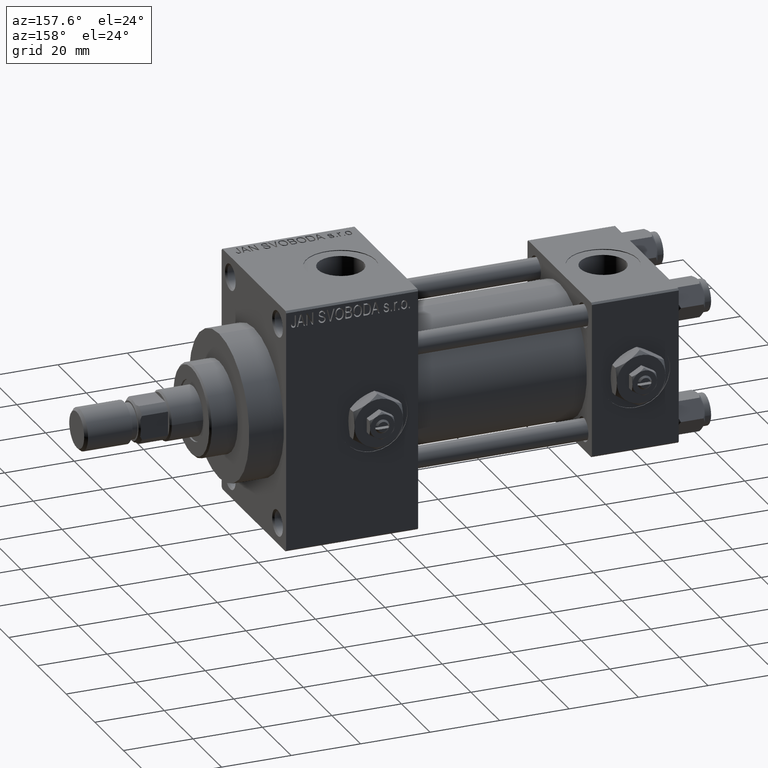
[diagram: clean part render]
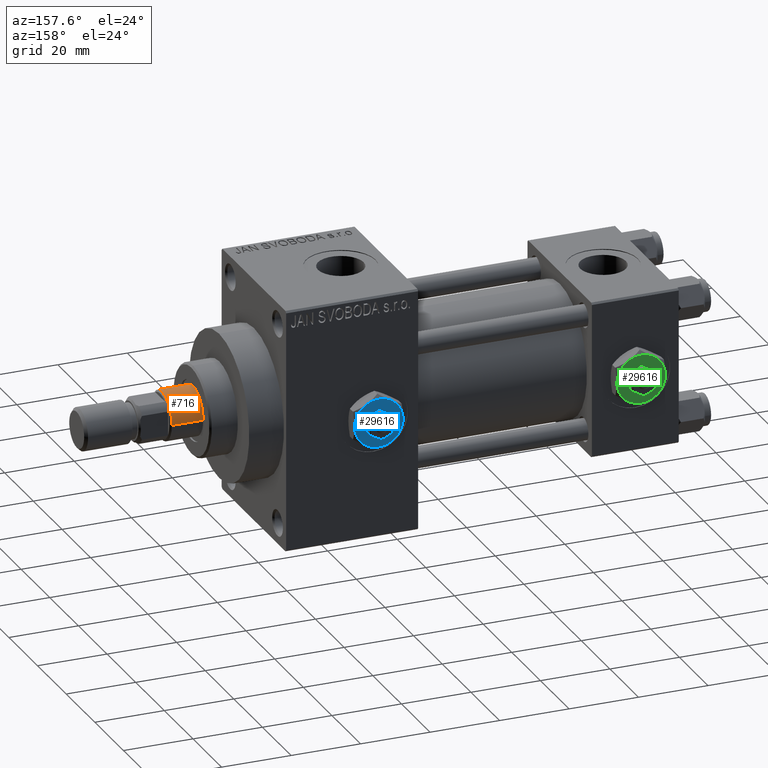
[diagram: same view with three faces highlighted in distinct colors, each labeled with its STEP entity id]
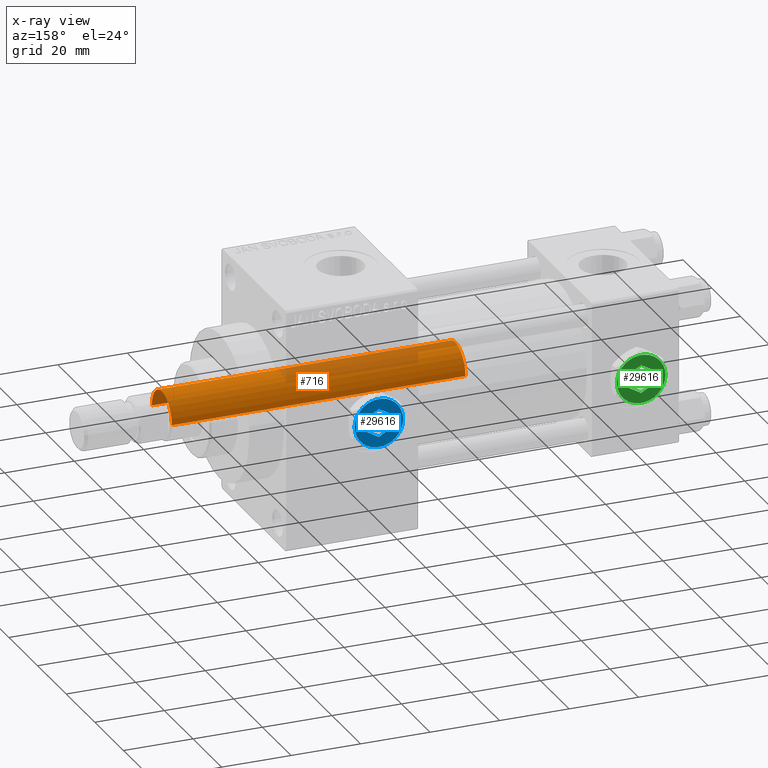
[diagram: x-ray of the same camera — body ghosted, the three highlighted faces saturated]
A machine part, auxiliary view with three faces highlighted in distinct colors.
The next image is the same camera in x-ray (body ghosted, the three faces saturated) — at least one of them is partly hidden behind the body in this view.
Their STEP definitions:

[orange] entity #716 — the highlighted cylindrical surface (edge-blend (fillet) strip) has radius 7 mm, axis along (-1, 0, 0).
#716 = ADVANCED_FACE ( 'NONE', ( #18123 ), #47436, .T. ) ;
#1975 = VECTOR ( 'NONE', #47404, 1000.000000000000000 ) ;
#3943 = EDGE_CURVE ( 'NONE', #38057, #41633, #25065, .T. ) ;
#5299 = LINE ( 'NONE', #35873, #1975 ) ;
#5441 = ORIENTED_EDGE ( 'NONE', *, *, #19315, .F. ) ;
#5735 = AXIS2_PLACEMENT_3D ( 'NONE', #40660, #40407, #5813 ) ;
#5813 = DIRECTION ( 'NONE',  ( -1.000000000000000000, 0.000000000000000000, 0.000000000000000000 ) ) ;
#7011 = CIRCLE ( 'NONE', #22229, 7.000000000000000000 ) ;
#10816 = EDGE_CURVE ( 'NONE', #41633, #11031, #5299, .T. ) ;
#11031 = VERTEX_POINT ( 'NONE', #24962 ) ;
#11114 = DIRECTION ( 'NONE',  ( 0.000000000000000000, 0.000000000000000000, -1.000000000000000000 ) ) ;
#13375 = CARTESIAN_POINT ( 'NONE',  ( 0.000000000000000000, 0.000000000000000000, 30.00000000000000000 ) ) ;
#13503 = ORIENTED_EDGE ( 'NONE', *, *, #3943, .T. ) ;
#14881 = LINE ( 'NONE', #18162, #38381 ) ;
#17898 = AXIS2_PLACEMENT_3D ( 'NONE', #18656, #11114, #45931 ) ;
#18123 = FACE_OUTER_BOUND ( 'NONE', #46974, .T. ) ;
#18162 = CARTESIAN_POINT ( 'NONE',  ( 7.000000000000000000, 8.572527594031473190E-16, 115.0000000000000000 ) ) ;
#18656 = CARTESIAN_POINT ( 'NONE',  ( 0.000000000000000000, 0.000000000000000000, 114.4999999999999858 ) ) ;
#19315 = EDGE_CURVE ( 'NONE', #38057, #27586, #14881, .T. ) ;
#21331 = CARTESIAN_POINT ( 'NONE',  ( 7.000000000000000000, 8.572527594031473190E-16, 30.00000000000000000 ) ) ;
#22229 = AXIS2_PLACEMENT_3D ( 'NONE', #13375, #40164, #44172 ) ;
#24962 = CARTESIAN_POINT ( 'NONE',  ( -7.000000000000000000, 0.000000000000000000, 30.00000000000000000 ) ) ;
#25065 = CIRCLE ( 'NONE', #17898, 7.000000000000000000 ) ;
#27586 = VERTEX_POINT ( 'NONE', #21331 ) ;
#27890 = CARTESIAN_POINT ( 'NONE',  ( 7.000000000000000000, 8.572527594031473190E-16, 114.4999999999999858 ) ) ;
#28862 = ORIENTED_EDGE ( 'NONE', *, *, #40035, .T. ) ;
#35873 = CARTESIAN_POINT ( 'NONE',  ( -7.000000000000000000, 0.000000000000000000, 115.0000000000000000 ) ) ;
#36933 = DIRECTION ( 'NONE',  ( -0.000000000000000000, -0.000000000000000000, -1.000000000000000000 ) ) ;
#38057 = VERTEX_POINT ( 'NONE', #27890 ) ;
#38381 = VECTOR ( 'NONE', #36933, 1000.000000000000000 ) ;
#40035 = EDGE_CURVE ( 'NONE', #11031, #27586, #7011, .T. ) ;
#40164 = DIRECTION ( 'NONE',  ( 0.000000000000000000, 0.000000000000000000, 1.000000000000000000 ) ) ;
#40407 = DIRECTION ( 'NONE',  ( -0.000000000000000000, -0.000000000000000000, -1.000000000000000000 ) ) ;
#40660 = CARTESIAN_POINT ( 'NONE',  ( 0.000000000000000000, 0.000000000000000000, 115.0000000000000000 ) ) ;
#40769 = ORIENTED_EDGE ( 'NONE', *, *, #10816, .T. ) ;
#41633 = VERTEX_POINT ( 'NONE', #49063 ) ;
#44172 = DIRECTION ( 'NONE',  ( 1.000000000000000000, 0.000000000000000000, 0.000000000000000000 ) ) ;
#45931 = DIRECTION ( 'NONE',  ( 1.000000000000000000, 0.000000000000000000, 0.000000000000000000 ) ) ;
#46974 = EDGE_LOOP ( 'NONE', ( #5441, #13503, #40769, #28862 ) ) ;
#47404 = DIRECTION ( 'NONE',  ( -0.000000000000000000, -0.000000000000000000, -1.000000000000000000 ) ) ;
#47436 = CYLINDRICAL_SURFACE ( 'NONE', #5735, 7.000000000000000000 ) ;
#49063 = CARTESIAN_POINT ( 'NONE',  ( -7.000000000000000000, 0.000000000000000000, 114.4999999999999858 ) ) ;

[blue] entity #29616 — the highlighted planar face has unit normal (0, 1, 0).
#1544 = DIRECTION ( 'NONE',  ( -3.219245568722483357E-16, 1.000000000000000000, 0.000000000000000000 ) ) ;
#1622 = EDGE_CURVE ( 'NONE', #43480, #4945, #37019, .T. ) ;
#2225 = CARTESIAN_POINT ( 'NONE',  ( -3.499999999999998668, -2.020725942163689837, 4.299999999999999822 ) ) ;
#2393 = VERTEX_POINT ( 'NONE', #41048 ) ;
#2497 = AXIS2_PLACEMENT_3D ( 'NONE', #41808, #7474, #3711 ) ;
#2732 = ORIENTED_EDGE ( 'NONE', *, *, #44584, .F. ) ;
#2875 = VERTEX_POINT ( 'NONE', #8058 ) ;
#2968 = VECTOR ( 'NONE', #3923, 1000.000000000000114 ) ;
#3405 = ORIENTED_EDGE ( 'NONE', *, *, #38580, .F. ) ;
#3677 = DIRECTION ( 'NONE',  ( 1.000000000000000000, 0.000000000000000000, 0.000000000000000000 ) ) ;
#3711 = DIRECTION ( 'NONE',  ( 1.000000000000000000, 0.000000000000000000, 0.000000000000000000 ) ) ;
#3923 = DIRECTION ( 'NONE',  ( -0.8660254037844387076, 0.4999999999999998335, 0.000000000000000000 ) ) ;
#4050 = EDGE_CURVE ( 'NONE', #2875, #27760, #42916, .T. ) ;
#4553 = CIRCLE ( 'NONE', #38967, 7.000000000000001776 ) ;
#4623 = ORIENTED_EDGE ( 'NONE', *, *, #16086, .T. ) ;
#4945 = VERTEX_POINT ( 'NONE', #39958 ) ;
#5557 = ORIENTED_EDGE ( 'NONE', *, *, #4050, .F. ) ;
#5629 = CIRCLE ( 'NONE', #15275, 7.000000000000001776 ) ;
#6574 = DIRECTION ( 'NONE',  ( -0.8660254037844385966, -0.4999999999999998890, 0.000000000000000000 ) ) ;
#6615 = AXIS2_PLACEMENT_3D ( 'NONE', #7528, #29861, #25834 ) ;
#7282 = FACE_BOUND ( 'NONE', #10330, .T. ) ;
#7474 = DIRECTION ( 'NONE',  ( 0.000000000000000000, 0.000000000000000000, 1.000000000000000000 ) ) ;
#7528 = CARTESIAN_POINT ( 'NONE',  ( 0.000000000000000000, 0.000000000000000000, 4.299999999999999822 ) ) ;
#8058 = CARTESIAN_POINT ( 'NONE',  ( 3.500000000000000000, -2.020725942163690281, 4.299999999999999822 ) ) ;
#8521 = ORIENTED_EDGE ( 'NONE', *, *, #1622, .T. ) ;
#8640 = DIRECTION ( 'NONE',  ( 0.000000000000000000, 0.000000000000000000, 1.000000000000000000 ) ) ;
#9154 = DIRECTION ( 'NONE',  ( 1.073081856240828196E-16, -1.000000000000000000, 0.000000000000000000 ) ) ;
#10330 = EDGE_LOOP ( 'NONE', ( #2732, #30223, #5557, #35259, #45930, #3405 ) ) ;
#10431 = DIRECTION ( 'NONE',  ( 0.000000000000000000, 0.000000000000000000, 1.000000000000000000 ) ) ;
#10694 = VECTOR ( 'NONE', #1544, 1000.000000000000000 ) ;
#10874 = AXIS2_PLACEMENT_3D ( 'NONE', #43472, #8640, #31462 ) ;
#11413 = CARTESIAN_POINT ( 'NONE',  ( 0.000000000000000000, 0.000000000000000000, 4.299999999999999822 ) ) ;
#11439 = DIRECTION ( 'NONE',  ( 0.000000000000000000, 0.000000000000000000, 1.000000000000000000 ) ) ;
#11903 = ORIENTED_EDGE ( 'NONE', *, *, #37173, .T. ) ;
#12481 = CARTESIAN_POINT ( 'NONE',  ( -2.443687887572056883E-16, -4.041451884327378785, 4.299999999999999822 ) ) ;
#13562 = CARTESIAN_POINT ( 'NONE',  ( 3.500000000000000444, 6.062177826491073063, 4.299999999999999822 ) ) ;
#13952 = VERTEX_POINT ( 'NONE', #18849 ) ;
#15275 = AXIS2_PLACEMENT_3D ( 'NONE', #40289, #20518, #36770 ) ;
#15414 = AXIS2_PLACEMENT_3D ( 'NONE', #45767, #11439, #3677 ) ;
#15466 = LINE ( 'NONE', #19471, #2968 ) ;
#16086 = EDGE_CURVE ( 'NONE', #2393, #43480, #48612, .T. ) ;
#17823 = EDGE_CURVE ( 'NONE', #4945, #48886, #5629, .T. ) ;
#18849 = CARTESIAN_POINT ( 'NONE',  ( -3.499999999999998668, -2.020725942163689837, 4.299999999999999822 ) ) ;
#19184 = ORIENTED_EDGE ( 'NONE', *, *, #17823, .T. ) ;
#19471 = CARTESIAN_POINT ( 'NONE',  ( 3.499999999999998224, 2.020725942163691613, 4.299999999999999822 ) ) ;
#19709 = LINE ( 'NONE', #20701, #22164 ) ;
#19883 = CARTESIAN_POINT ( 'NONE',  ( -3.499999999999999112, 2.020725942163690725, 4.299999999999999822 ) ) ;
#20518 = DIRECTION ( 'NONE',  ( 0.000000000000000000, 0.000000000000000000, 1.000000000000000000 ) ) ;
#20622 = CARTESIAN_POINT ( 'NONE',  ( 3.499999999999999556, -2.020725942163690281, 4.299999999999999822 ) ) ;
#20701 = CARTESIAN_POINT ( 'NONE',  ( -3.499999999999999112, 2.020725942163690725, 4.299999999999999822 ) ) ;
#20904 = CARTESIAN_POINT ( 'NONE',  ( 0.000000000000000000, 0.000000000000000000, 4.299999999999999822 ) ) ;
#22164 = VECTOR ( 'NONE', #9154, 1000.000000000000000 ) ;
#22335 = PLANE ( 'NONE',  #6615 ) ;
#23087 = EDGE_CURVE ( 'NONE', #48886, #32389, #24105, .T. ) ;
#23498 = ORIENTED_EDGE ( 'NONE', *, *, #23087, .T. ) ;
#24105 = CIRCLE ( 'NONE', #2497, 7.000000000000001776 ) ;
#25749 = CARTESIAN_POINT ( 'NONE',  ( 3.499999999999998224, 2.020725942163691613, 4.299999999999999822 ) ) ;
#25834 = DIRECTION ( 'NONE',  ( 1.000000000000000000, 0.000000000000000000, -0.000000000000000000 ) ) ;
#26120 = CARTESIAN_POINT ( 'NONE',  ( 3.500000000000000888, -6.062177826491073951, 4.299999999999999822 ) ) ;
#26352 = ORIENTED_EDGE ( 'NONE', *, *, #43118, .T. ) ;
#27760 = VERTEX_POINT ( 'NONE', #25749 ) ;
#29275 = EDGE_LOOP ( 'NONE', ( #11903, #4623, #8521, #19184, #23498, #26352 ) ) ;
#29405 = AXIS2_PLACEMENT_3D ( 'NONE', #11413, #10431, #45263 ) ;
#29616 = ADVANCED_FACE ( 'NONE', ( #41864, #7282 ), #22335, .T. ) ;
#29861 = DIRECTION ( 'NONE',  ( 0.000000000000000000, 0.000000000000000000, 1.000000000000000000 ) ) ;
#30223 = ORIENTED_EDGE ( 'NONE', *, *, #41715, .F. ) ;
#30724 = EDGE_CURVE ( 'NONE', #36685, #2875, #38545, .T. ) ;
#31462 = DIRECTION ( 'NONE',  ( 1.000000000000000000, 0.000000000000000000, 0.000000000000000000 ) ) ;
#32389 = VERTEX_POINT ( 'NONE', #46881 ) ;
#32804 = DIRECTION ( 'NONE',  ( 0.8660254037844385966, -0.4999999999999998890, 0.000000000000000000 ) ) ;
#32872 = VECTOR ( 'NONE', #32804, 1000.000000000000227 ) ;
#33314 = CIRCLE ( 'NONE', #10874, 7.000000000000001776 ) ;
#34384 = VERTEX_POINT ( 'NONE', #44381 ) ;
#34535 = DIRECTION ( 'NONE',  ( 0.8660254037844388186, 0.4999999999999996669, 0.000000000000000000 ) ) ;
#35259 = ORIENTED_EDGE ( 'NONE', *, *, #30724, .F. ) ;
#35465 = VECTOR ( 'NONE', #34535, 1000.000000000000114 ) ;
#36685 = VERTEX_POINT ( 'NONE', #47101 ) ;
#36770 = DIRECTION ( 'NONE',  ( 1.000000000000000000, 0.000000000000000000, 0.000000000000000000 ) ) ;
#37019 = CIRCLE ( 'NONE', #15414, 7.000000000000001776 ) ;
#37173 = EDGE_CURVE ( 'NONE', #38350, #2393, #33314, .T. ) ;
#38114 = VERTEX_POINT ( 'NONE', #19883 ) ;
#38350 = VERTEX_POINT ( 'NONE', #26120 ) ;
#38545 = LINE ( 'NONE', #12481, #35465 ) ;
#38580 = EDGE_CURVE ( 'NONE', #38114, #13952, #19709, .T. ) ;
#38967 = AXIS2_PLACEMENT_3D ( 'NONE', #20904, #39434, #47949 ) ;
#39328 = CARTESIAN_POINT ( 'NONE',  ( -7.000000000000001776, -2.253471898105739040E-15, 4.299999999999999822 ) ) ;
#39434 = DIRECTION ( 'NONE',  ( 0.000000000000000000, 0.000000000000000000, 1.000000000000000000 ) ) ;
#39907 = LINE ( 'NONE', #40411, #48040 ) ;
#39958 = CARTESIAN_POINT ( 'NONE',  ( -3.500000000000000888, 6.062177826491073063, 4.299999999999999822 ) ) ;
#40289 = CARTESIAN_POINT ( 'NONE',  ( 0.000000000000000000, 0.000000000000000000, 4.299999999999999822 ) ) ;
#40411 = CARTESIAN_POINT ( 'NONE',  ( 0.000000000000000000, 4.041451884327380562, 4.299999999999999822 ) ) ;
#40579 = LINE ( 'NONE', #2225, #32872 ) ;
#41048 = CARTESIAN_POINT ( 'NONE',  ( 6.999999999999994671, 3.004629197474313724E-15, 4.299999999999999822 ) ) ;
#41715 = EDGE_CURVE ( 'NONE', #27760, #34384, #15466, .T. ) ;
#41808 = CARTESIAN_POINT ( 'NONE',  ( 0.000000000000000000, 0.000000000000000000, 4.299999999999999822 ) ) ;
#41864 = FACE_OUTER_BOUND ( 'NONE', #29275, .T. ) ;
#42916 = LINE ( 'NONE', #20622, #10694 ) ;
#43118 = EDGE_CURVE ( 'NONE', #32389, #38350, #4553, .T. ) ;
#43472 = CARTESIAN_POINT ( 'NONE',  ( 0.000000000000000000, 0.000000000000000000, 4.299999999999999822 ) ) ;
#43480 = VERTEX_POINT ( 'NONE', #13562 ) ;
#44381 = CARTESIAN_POINT ( 'NONE',  ( 0.000000000000000000, 4.041451884327380562, 4.299999999999999822 ) ) ;
#44584 = EDGE_CURVE ( 'NONE', #34384, #38114, #39907, .T. ) ;
#45263 = DIRECTION ( 'NONE',  ( 1.000000000000000000, 0.000000000000000000, 0.000000000000000000 ) ) ;
#45767 = CARTESIAN_POINT ( 'NONE',  ( 0.000000000000000000, 0.000000000000000000, 4.299999999999999822 ) ) ;
#45930 = ORIENTED_EDGE ( 'NONE', *, *, #49080, .F. ) ;
#46881 = CARTESIAN_POINT ( 'NONE',  ( -3.500000000000000000, -6.062177826491073063, 4.299999999999999822 ) ) ;
#47101 = CARTESIAN_POINT ( 'NONE',  ( -2.443687887572056883E-16, -4.041451884327378785, 4.299999999999999822 ) ) ;
#47949 = DIRECTION ( 'NONE',  ( 1.000000000000000000, 0.000000000000000000, 0.000000000000000000 ) ) ;
#48040 = VECTOR ( 'NONE', #6574, 1000.000000000000227 ) ;
#48612 = CIRCLE ( 'NONE', #29405, 7.000000000000001776 ) ;
#48886 = VERTEX_POINT ( 'NONE', #39328 ) ;
#49080 = EDGE_CURVE ( 'NONE', #13952, #36685, #40579, .T. ) ;

[green] entity #29616 — the highlighted planar face has unit normal (0, 1, 0).
#1544 = DIRECTION ( 'NONE',  ( -3.219245568722483357E-16, 1.000000000000000000, 0.000000000000000000 ) ) ;
#1622 = EDGE_CURVE ( 'NONE', #43480, #4945, #37019, .T. ) ;
#2225 = CARTESIAN_POINT ( 'NONE',  ( -3.499999999999998668, -2.020725942163689837, 4.299999999999999822 ) ) ;
#2393 = VERTEX_POINT ( 'NONE', #41048 ) ;
#2497 = AXIS2_PLACEMENT_3D ( 'NONE', #41808, #7474, #3711 ) ;
#2732 = ORIENTED_EDGE ( 'NONE', *, *, #44584, .F. ) ;
#2875 = VERTEX_POINT ( 'NONE', #8058 ) ;
#2968 = VECTOR ( 'NONE', #3923, 1000.000000000000114 ) ;
#3405 = ORIENTED_EDGE ( 'NONE', *, *, #38580, .F. ) ;
#3677 = DIRECTION ( 'NONE',  ( 1.000000000000000000, 0.000000000000000000, 0.000000000000000000 ) ) ;
#3711 = DIRECTION ( 'NONE',  ( 1.000000000000000000, 0.000000000000000000, 0.000000000000000000 ) ) ;
#3923 = DIRECTION ( 'NONE',  ( -0.8660254037844387076, 0.4999999999999998335, 0.000000000000000000 ) ) ;
#4050 = EDGE_CURVE ( 'NONE', #2875, #27760, #42916, .T. ) ;
#4553 = CIRCLE ( 'NONE', #38967, 7.000000000000001776 ) ;
#4623 = ORIENTED_EDGE ( 'NONE', *, *, #16086, .T. ) ;
#4945 = VERTEX_POINT ( 'NONE', #39958 ) ;
#5557 = ORIENTED_EDGE ( 'NONE', *, *, #4050, .F. ) ;
#5629 = CIRCLE ( 'NONE', #15275, 7.000000000000001776 ) ;
#6574 = DIRECTION ( 'NONE',  ( -0.8660254037844385966, -0.4999999999999998890, 0.000000000000000000 ) ) ;
#6615 = AXIS2_PLACEMENT_3D ( 'NONE', #7528, #29861, #25834 ) ;
#7282 = FACE_BOUND ( 'NONE', #10330, .T. ) ;
#7474 = DIRECTION ( 'NONE',  ( 0.000000000000000000, 0.000000000000000000, 1.000000000000000000 ) ) ;
#7528 = CARTESIAN_POINT ( 'NONE',  ( 0.000000000000000000, 0.000000000000000000, 4.299999999999999822 ) ) ;
#8058 = CARTESIAN_POINT ( 'NONE',  ( 3.500000000000000000, -2.020725942163690281, 4.299999999999999822 ) ) ;
#8521 = ORIENTED_EDGE ( 'NONE', *, *, #1622, .T. ) ;
#8640 = DIRECTION ( 'NONE',  ( 0.000000000000000000, 0.000000000000000000, 1.000000000000000000 ) ) ;
#9154 = DIRECTION ( 'NONE',  ( 1.073081856240828196E-16, -1.000000000000000000, 0.000000000000000000 ) ) ;
#10330 = EDGE_LOOP ( 'NONE', ( #2732, #30223, #5557, #35259, #45930, #3405 ) ) ;
#10431 = DIRECTION ( 'NONE',  ( 0.000000000000000000, 0.000000000000000000, 1.000000000000000000 ) ) ;
#10694 = VECTOR ( 'NONE', #1544, 1000.000000000000000 ) ;
#10874 = AXIS2_PLACEMENT_3D ( 'NONE', #43472, #8640, #31462 ) ;
#11413 = CARTESIAN_POINT ( 'NONE',  ( 0.000000000000000000, 0.000000000000000000, 4.299999999999999822 ) ) ;
#11439 = DIRECTION ( 'NONE',  ( 0.000000000000000000, 0.000000000000000000, 1.000000000000000000 ) ) ;
#11903 = ORIENTED_EDGE ( 'NONE', *, *, #37173, .T. ) ;
#12481 = CARTESIAN_POINT ( 'NONE',  ( -2.443687887572056883E-16, -4.041451884327378785, 4.299999999999999822 ) ) ;
#13562 = CARTESIAN_POINT ( 'NONE',  ( 3.500000000000000444, 6.062177826491073063, 4.299999999999999822 ) ) ;
#13952 = VERTEX_POINT ( 'NONE', #18849 ) ;
#15275 = AXIS2_PLACEMENT_3D ( 'NONE', #40289, #20518, #36770 ) ;
#15414 = AXIS2_PLACEMENT_3D ( 'NONE', #45767, #11439, #3677 ) ;
#15466 = LINE ( 'NONE', #19471, #2968 ) ;
#16086 = EDGE_CURVE ( 'NONE', #2393, #43480, #48612, .T. ) ;
#17823 = EDGE_CURVE ( 'NONE', #4945, #48886, #5629, .T. ) ;
#18849 = CARTESIAN_POINT ( 'NONE',  ( -3.499999999999998668, -2.020725942163689837, 4.299999999999999822 ) ) ;
#19184 = ORIENTED_EDGE ( 'NONE', *, *, #17823, .T. ) ;
#19471 = CARTESIAN_POINT ( 'NONE',  ( 3.499999999999998224, 2.020725942163691613, 4.299999999999999822 ) ) ;
#19709 = LINE ( 'NONE', #20701, #22164 ) ;
#19883 = CARTESIAN_POINT ( 'NONE',  ( -3.499999999999999112, 2.020725942163690725, 4.299999999999999822 ) ) ;
#20518 = DIRECTION ( 'NONE',  ( 0.000000000000000000, 0.000000000000000000, 1.000000000000000000 ) ) ;
#20622 = CARTESIAN_POINT ( 'NONE',  ( 3.499999999999999556, -2.020725942163690281, 4.299999999999999822 ) ) ;
#20701 = CARTESIAN_POINT ( 'NONE',  ( -3.499999999999999112, 2.020725942163690725, 4.299999999999999822 ) ) ;
#20904 = CARTESIAN_POINT ( 'NONE',  ( 0.000000000000000000, 0.000000000000000000, 4.299999999999999822 ) ) ;
#22164 = VECTOR ( 'NONE', #9154, 1000.000000000000000 ) ;
#22335 = PLANE ( 'NONE',  #6615 ) ;
#23087 = EDGE_CURVE ( 'NONE', #48886, #32389, #24105, .T. ) ;
#23498 = ORIENTED_EDGE ( 'NONE', *, *, #23087, .T. ) ;
#24105 = CIRCLE ( 'NONE', #2497, 7.000000000000001776 ) ;
#25749 = CARTESIAN_POINT ( 'NONE',  ( 3.499999999999998224, 2.020725942163691613, 4.299999999999999822 ) ) ;
#25834 = DIRECTION ( 'NONE',  ( 1.000000000000000000, 0.000000000000000000, -0.000000000000000000 ) ) ;
#26120 = CARTESIAN_POINT ( 'NONE',  ( 3.500000000000000888, -6.062177826491073951, 4.299999999999999822 ) ) ;
#26352 = ORIENTED_EDGE ( 'NONE', *, *, #43118, .T. ) ;
#27760 = VERTEX_POINT ( 'NONE', #25749 ) ;
#29275 = EDGE_LOOP ( 'NONE', ( #11903, #4623, #8521, #19184, #23498, #26352 ) ) ;
#29405 = AXIS2_PLACEMENT_3D ( 'NONE', #11413, #10431, #45263 ) ;
#29616 = ADVANCED_FACE ( 'NONE', ( #41864, #7282 ), #22335, .T. ) ;
#29861 = DIRECTION ( 'NONE',  ( 0.000000000000000000, 0.000000000000000000, 1.000000000000000000 ) ) ;
#30223 = ORIENTED_EDGE ( 'NONE', *, *, #41715, .F. ) ;
#30724 = EDGE_CURVE ( 'NONE', #36685, #2875, #38545, .T. ) ;
#31462 = DIRECTION ( 'NONE',  ( 1.000000000000000000, 0.000000000000000000, 0.000000000000000000 ) ) ;
#32389 = VERTEX_POINT ( 'NONE', #46881 ) ;
#32804 = DIRECTION ( 'NONE',  ( 0.8660254037844385966, -0.4999999999999998890, 0.000000000000000000 ) ) ;
#32872 = VECTOR ( 'NONE', #32804, 1000.000000000000227 ) ;
#33314 = CIRCLE ( 'NONE', #10874, 7.000000000000001776 ) ;
#34384 = VERTEX_POINT ( 'NONE', #44381 ) ;
#34535 = DIRECTION ( 'NONE',  ( 0.8660254037844388186, 0.4999999999999996669, 0.000000000000000000 ) ) ;
#35259 = ORIENTED_EDGE ( 'NONE', *, *, #30724, .F. ) ;
#35465 = VECTOR ( 'NONE', #34535, 1000.000000000000114 ) ;
#36685 = VERTEX_POINT ( 'NONE', #47101 ) ;
#36770 = DIRECTION ( 'NONE',  ( 1.000000000000000000, 0.000000000000000000, 0.000000000000000000 ) ) ;
#37019 = CIRCLE ( 'NONE', #15414, 7.000000000000001776 ) ;
#37173 = EDGE_CURVE ( 'NONE', #38350, #2393, #33314, .T. ) ;
#38114 = VERTEX_POINT ( 'NONE', #19883 ) ;
#38350 = VERTEX_POINT ( 'NONE', #26120 ) ;
#38545 = LINE ( 'NONE', #12481, #35465 ) ;
#38580 = EDGE_CURVE ( 'NONE', #38114, #13952, #19709, .T. ) ;
#38967 = AXIS2_PLACEMENT_3D ( 'NONE', #20904, #39434, #47949 ) ;
#39328 = CARTESIAN_POINT ( 'NONE',  ( -7.000000000000001776, -2.253471898105739040E-15, 4.299999999999999822 ) ) ;
#39434 = DIRECTION ( 'NONE',  ( 0.000000000000000000, 0.000000000000000000, 1.000000000000000000 ) ) ;
#39907 = LINE ( 'NONE', #40411, #48040 ) ;
#39958 = CARTESIAN_POINT ( 'NONE',  ( -3.500000000000000888, 6.062177826491073063, 4.299999999999999822 ) ) ;
#40289 = CARTESIAN_POINT ( 'NONE',  ( 0.000000000000000000, 0.000000000000000000, 4.299999999999999822 ) ) ;
#40411 = CARTESIAN_POINT ( 'NONE',  ( 0.000000000000000000, 4.041451884327380562, 4.299999999999999822 ) ) ;
#40579 = LINE ( 'NONE', #2225, #32872 ) ;
#41048 = CARTESIAN_POINT ( 'NONE',  ( 6.999999999999994671, 3.004629197474313724E-15, 4.299999999999999822 ) ) ;
#41715 = EDGE_CURVE ( 'NONE', #27760, #34384, #15466, .T. ) ;
#41808 = CARTESIAN_POINT ( 'NONE',  ( 0.000000000000000000, 0.000000000000000000, 4.299999999999999822 ) ) ;
#41864 = FACE_OUTER_BOUND ( 'NONE', #29275, .T. ) ;
#42916 = LINE ( 'NONE', #20622, #10694 ) ;
#43118 = EDGE_CURVE ( 'NONE', #32389, #38350, #4553, .T. ) ;
#43472 = CARTESIAN_POINT ( 'NONE',  ( 0.000000000000000000, 0.000000000000000000, 4.299999999999999822 ) ) ;
#43480 = VERTEX_POINT ( 'NONE', #13562 ) ;
#44381 = CARTESIAN_POINT ( 'NONE',  ( 0.000000000000000000, 4.041451884327380562, 4.299999999999999822 ) ) ;
#44584 = EDGE_CURVE ( 'NONE', #34384, #38114, #39907, .T. ) ;
#45263 = DIRECTION ( 'NONE',  ( 1.000000000000000000, 0.000000000000000000, 0.000000000000000000 ) ) ;
#45767 = CARTESIAN_POINT ( 'NONE',  ( 0.000000000000000000, 0.000000000000000000, 4.299999999999999822 ) ) ;
#45930 = ORIENTED_EDGE ( 'NONE', *, *, #49080, .F. ) ;
#46881 = CARTESIAN_POINT ( 'NONE',  ( -3.500000000000000000, -6.062177826491073063, 4.299999999999999822 ) ) ;
#47101 = CARTESIAN_POINT ( 'NONE',  ( -2.443687887572056883E-16, -4.041451884327378785, 4.299999999999999822 ) ) ;
#47949 = DIRECTION ( 'NONE',  ( 1.000000000000000000, 0.000000000000000000, 0.000000000000000000 ) ) ;
#48040 = VECTOR ( 'NONE', #6574, 1000.000000000000227 ) ;
#48612 = CIRCLE ( 'NONE', #29405, 7.000000000000001776 ) ;
#48886 = VERTEX_POINT ( 'NONE', #39328 ) ;
#49080 = EDGE_CURVE ( 'NONE', #13952, #36685, #40579, .T. ) ;